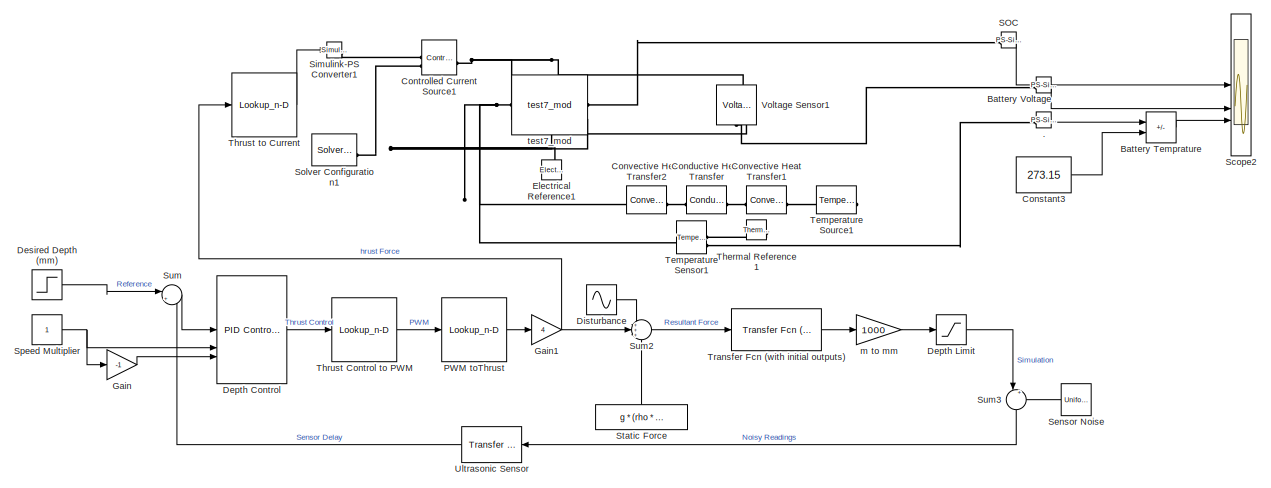
[diagram: root canvas - part 1/2, full width, top band]
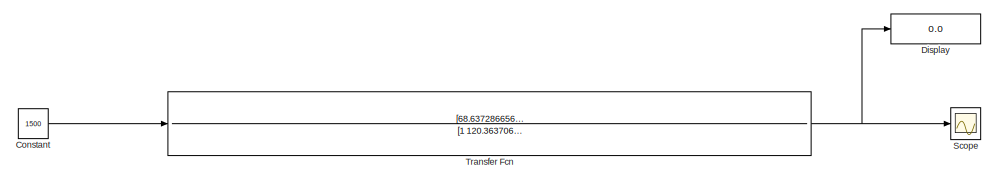
[diagram: root canvas - part 2/2, full width, bottom band]
MODEL slx_ea2442fdf5a1
KIND model
CONFIG AbsTol = auto
CONFIG EnableMultiTasking = on
CONFIG FixedStep = auto
CONFIG MaxStep = auto
CONFIG MinStep = auto
CONFIG RelTol = 1e-3
CONFIG SampleTimeConstraint = Unconstrained
CONFIG SolverName = VariableStepAuto
CONFIG StartTime = 0.0
CONFIG StopTime = 15
BLOCK [Reference] .  REF=nesl_utility/PS-Simulink
Converter
  SourceBlock = nesl_utility/PS-Simulink\nConverter
  SourceType = PS-Simulink\nConverter
BLOCK [Sum] Battery Temprature
  IconShape = rectangular
  Inputs = +-
BLOCK [Reference] Battery Voltage  REF=nesl_utility/PS-Simulink
Converter
  SourceBlock = nesl_utility/PS-Simulink\nConverter
  SourceType = PS-Simulink\nConverter
BLOCK [Reference] Conductive Heat Transfer  REF=fl_lib/Thermal/Thermal Elements/Conductive Heat
Transfer
  SourceBlock = fl_lib/Thermal/Thermal Elements/Conductive Heat\nTransfer
  SourceType = Conductive Heat\nTransfer
BLOCK [Constant] Constant
  Commented = on
  Value = 1500
BLOCK [Constant] Constant3
  Value = 273.15
BLOCK [Reference] Controlled Current Source1  REF=fl_lib/Electrical/Electrical Sources/Controlled Current
Source
  SourceBlock = fl_lib/Electrical/Electrical Sources/Controlled Current\nSource
  SourceType = Controlled Current\nSource
BLOCK [Reference] Convective Heat Transfer1  REF=fl_lib/Thermal/Thermal Elements/Convective Heat
Transfer
  SourceBlock = fl_lib/Thermal/Thermal Elements/Convective Heat\nTransfer
  SourceType = Convective Heat\nTransfer
BLOCK [Reference] Convective Heat Transfer2  REF=fl_lib/Thermal/Thermal Elements/Convective Heat
Transfer
  SourceBlock = fl_lib/Thermal/Thermal Elements/Convective Heat\nTransfer
  SourceType = Convective Heat\nTransfer
BLOCK [Reference] Depth Control  REF=slpidlib/PID Controller
  LibrarySourceBlock = simulink/Continuous/PID Controller
  SourceBlock = slpidlib/PID Controller
  SourceType = PID 1dof
BLOCK [Saturate] Depth Limit
  LowerLimit = 300
  UpperLimit = Inf
BLOCK [Step] Desired Depth (mm)
  After = 800
  Before = 500
  SampleTime = 0
  Time = 15
BLOCK [Display] Display
  Commented = on
  Decimation = 1
BLOCK [Sin] Disturbance 
  Amplitude = .25
  SampleTime = 0
BLOCK [Reference] Electrical Reference1  REF=fl_lib/Electrical/Electrical Elements/Electrical Reference
  SourceBlock = fl_lib/Electrical/Electrical Elements/Electrical Reference
  SourceType = Electrical Reference
BLOCK [Gain] Gain
  Gain = -1
BLOCK [Gain] Gain1
  Gain = 4
BLOCK [Lookup_n-D] PWM toThrust 
  BreakpointsForDimension1 = [1100;1104;1108;1112;1116;1120;1124;1128;1132;1136;1140;1144;1148;1152;1156;1160;1164;1168;1172;1176;1180;1184;1188;1192;1196;1200;1204;1208;1212;1216;1220;1224;1228;1232;1236;1240;1244;1248;1252;1256;1260;1264;1268;1272;1276;1280;1284;1288;1292;1296;1300;1304;1308;1312;1316;1320;1324;1328;1332;1336;1340;1344;1348;1352;1356;1360;1364;1368;1372;1376;1380;1384;1388;1392;1396;1400;1404;1408;1412;1416...<+606ch>
  InputPortMap = u0
  InternalRulePriority = Speed
  NumberOfTableDimensions = 1
  OutDataTypeStr = double
  RndMeth = Simplest
  Table = [-34.500300000000003;-34.307499999999997;-34.262999999999998;-33.862499999999997;-33.372999999999998;-32.928100000000001;-32.305100000000003;-31.860099999999999;-31.281700000000001;-30.792200000000001;-30.3917;-29.991199999999999;-29.4573;-28.834299999999999;-28.3003;-27.944400000000002;-27.276900000000001;-27.0989;-26.386900000000001;-25.942;-25.452500000000001;-24.785;-24.429099999999998;-24.073...<+2646ch>
BLOCK [Reference] SOC  REF=nesl_utility/PS-Simulink
Converter
  SourceBlock = nesl_utility/PS-Simulink\nConverter
  SourceType = PS-Simulink\nConverter
BLOCK [Scope] Scope
  Commented = on
  Floating = off
  NumInputPorts = 1
  ScopeSpecificationString = Simulink.scopes.TimeScopeBlockCfg('CurrentConfiguration', extmgr.ConfigurationSet(extmgr.Configuration('Core','General UI',true),extmgr.Configuration('Core','Source UI',true),extmgr.Configuration('Sources','WiredSimulink',true),extmgr.Configuration('Visuals','Time Domain',true,'SerializedDisplays',{struct('MinYLimReal','-6.88243','MaxYLimReal','61.94188','YLabelReal','','MinYLimMag','0.00000','Max...<+1336ch>
BLOCK [Scope] Scope2
  Floating = off
  NumInputPorts = 3
  ScopeSpecificationString = Simulink.scopes.TimeScopeBlockCfg('CurrentConfiguration', extmgr.ConfigurationSet(extmgr.Configuration('Core','General UI',true,'FigureColor',[0 0 0]),extmgr.Configuration('Core','Source UI',true),extmgr.Configuration('Sources','WiredSimulink',true,'DataLoggingVariableName','ScopeData1'),extmgr.Configuration('Visuals','Time Domain',true,'SerializedDisplays',{struct('MinYLimReal','-0.125','MaxYLimR...<+3910ch>
BLOCK [UniformRandomNumber] Sensor Noise
  Maximum = 5
  Minimum = -5
  NameLocation = top
  SampleTime = 2
BLOCK [Reference] Simulink-PS Converter1  REF=nesl_utility/Simulink-PS
Converter
  SourceBlock = nesl_utility/Simulink-PS\nConverter
  SourceType = Simulink-PS\nConverter
BLOCK [Reference] Solver Configuration1  REF=nesl_utility/Solver
Configuration
  SourceBlock = nesl_utility/Solver\nConfiguration
  SourceType = Solver\nConfiguration
BLOCK [Constant] Speed Multiplier
BLOCK [Constant] Static Force
  NameLocation = right
  Value = g * (rho * V - m)
BLOCK [Sum] Sum
  Inputs = |+-
BLOCK [Sum] Sum2
  Inputs = +++
BLOCK [Sum] Sum3
  Inputs = |++
  NameLocation = left
BLOCK [Reference] Temperature Sensor1  REF=fl_lib/Thermal/Thermal Sensors/Temperature Sensor
  SourceBlock = fl_lib/Thermal/Thermal Sensors/Temperature Sensor
  SourceType = Temperature Sensor
BLOCK [Reference] Temperature Source1  REF=fl_lib/Thermal/Thermal Sources/Temperature Source
  NameLocation = top
  SourceBlock = fl_lib/Thermal/Thermal Sources/Temperature Source
  SourceType = Temperature Source
BLOCK [Reference] Thermal Reference1  REF=fl_lib/Thermal/Thermal Elements/Thermal Reference
  NameLocation = top
  SourceBlock = fl_lib/Thermal/Thermal Elements/Thermal Reference
  SourceType = Thermal Reference
BLOCK [Lookup_n-D] Thrust Control to PWM
  BreakpointsForDimension1 = [-1:0.01:1]
  InputPortMap = u0
  InternalRulePriority = Speed
  NumberOfTableDimensions = 1
  RndMeth = Simplest
  Table = 1500 + 400 * ([-1:0.01:1])
BLOCK [Lookup_n-D] Thrust to Current
  BreakpointsForDimension1 = [1100;1104;1108;1112;1116;1120;1124;1128;1132;1136;1140;1144;1148;1152;1156;1160;1164;1168;1172;1176;1180;1184;1188;1192;1196;1200;1204;1208;1212;1216;1220;1224;1228;1232;1236;1240;1244;1248;1252;1256;1260;1264;1268;1272;1276;1280;1284;1288;1292;1296;1300;1304;1308;1312;1316;1320;1324;1328;1332;1336;1340;1344;1348;1352;1356;1360;1364;1368;1372;1376;1380;1384;1388;1392;1396;1400;1404;1408;1412;1416...<+606ch>
  InputPortMap = u0
  InternalRulePriority = Speed
  NumberOfTableDimensions = 1
  OutDataTypeStr = double
  RndMeth = Simplest
  Table = [-34.500300000000003;-34.307499999999997;-34.262999999999998;-33.862499999999997;-33.372999999999998;-32.928100000000001;-32.305100000000003;-31.860099999999999;-31.281700000000001;-30.792200000000001;-30.3917;-29.991199999999999;-29.4573;-28.834299999999999;-28.3003;-27.944400000000002;-27.276900000000001;-27.0989;-26.386900000000001;-25.942;-25.452500000000001;-24.785;-24.429099999999998;-24.073...<+2646ch>
BLOCK [TransferFcn] Transfer Fcn
  Commented = on
  Denominator = [1 120.363706413579 21504.5397613984 1582983.90041224 566215.169427592]
  Numerator = [68.6372866563244 45582.4520826474 19814.1337335844]
BLOCK [Reference] Transfer Fcn (with initial outputs)  REF=simulink_extras/Additional
Linear/Transfer Fcn
(with initial outputs)
  SourceBlock = simulink_extras/Additional\nLinear/Transfer Fcn\n(with initial outputs)
  SourceType = Transfer Function with Initial Outputs
BLOCK [Reference] Ultrasonic Sensor  REF=simulink_extras/Additional
Linear/Transfer Fcn
(with initial outputs)
  NameLocation = top
  SourceBlock = simulink_extras/Additional\nLinear/Transfer Fcn\n(with initial outputs)
  SourceType = Transfer Function with Initial Outputs
BLOCK [Reference] Voltage Sensor1  REF=fl_lib/Electrical/Electrical Sensors/Voltage Sensor
  NameLocation = right
  SourceBlock = fl_lib/Electrical/Electrical Sensors/Voltage Sensor
  SourceType = Voltage Sensor
BLOCK [Gain] m to mm
  Gain = 1000
BLOCK [Reference] test7_mod  REF=Batteriestest7_lib/test7_mod
  SourceBlock = Batteriestest7_lib/test7_mod
  SourceType = test7_mod
LINE .:1 -> Battery Temprature:1
LINE Battery Temprature:1 -> Scope2:3
LINE Battery Voltage:1 -> Scope2:2
LINE Constant3:1 -> Battery Temprature:2
LINE Constant:1 -> Transfer Fcn:1
LINE Depth Control:1 -> Thrust Control to PWM:1
LINE Depth Limit:1 -> Sum3:1
LINE Desired Depth (mm):1 -> Sum:1
LINE Disturbance :1 -> Sum2:1
NET Gain1:1 -> Sum2:2, Thrust to Current:1
LINE Gain:1 -> Depth Control:3
LINE PWM toThrust :1 -> Gain1:1
LINE SOC:1 -> Scope2:1
LINE Sensor Noise:1 -> Sum3:2
NET Speed Multiplier:1 -> Depth Control:2, Gain:1
LINE Static Force:1 -> Sum2:3
LINE Sum2:1 -> Transfer Fcn (with initial outputs):1
LINE Sum3:1 -> Ultrasonic Sensor:1
LINE Sum:1 -> Depth Control:1
LINE Thrust Control to PWM:1 -> PWM toThrust :1
LINE Thrust to Current:1 -> Simulink-PS Converter1:1
LINE Transfer Fcn (with initial outputs):1 -> m to mm:1
NET Transfer Fcn:1 -> Display:1, Scope:1
LINE Ultrasonic Sensor:1 -> Sum:2
LINE m to mm:1 -> Depth Limit:1
PLINE .:LConn1 -- Temperature Sensor1:RConn2
PLINE Battery Voltage:LConn1 -- Voltage Sensor1:RConn1
PLINE Conductive Heat Transfer:LConn1 -- Convective Heat Transfer2:RConn1
PLINE Conductive Heat Transfer:RConn1 -- Convective Heat Transfer1:LConn1
PNET net1: Controlled Current Source1:LConn1 -- Voltage Sensor1:LConn1 -- test7_mod:LConn2
PLINE Controlled Current Source1:RConn1 -- Simulink-PS Converter1:RConn1
PNET net2: Controlled Current Source1:RConn2 -- Electrical Reference1:LConn1 -- Solver Configuration1:RConn1 -- Voltage Sensor1:RConn2 -- test7_mod:RConn2
PLINE Convective Heat Transfer1:RConn1 -- Temperature Source1:LConn1
PNET net3: Convective Heat Transfer2:LConn1 -- Temperature Sensor1:LConn1 -- test7_mod:LConn1
PLINE SOC:LConn1 -- test7_mod:RConn1
PLINE Temperature Sensor1:RConn1 -- Thermal Reference1:LConn1
note: NET lines group one-source signal fan-out (src -> all destinations, sorted); 1:1 wires keep LINE; PNET lines group multi-terminal physical nets as a canonical sorted terminal list (undirected conserving connections); 2-terminal nets keep the pairwise PLINE form
